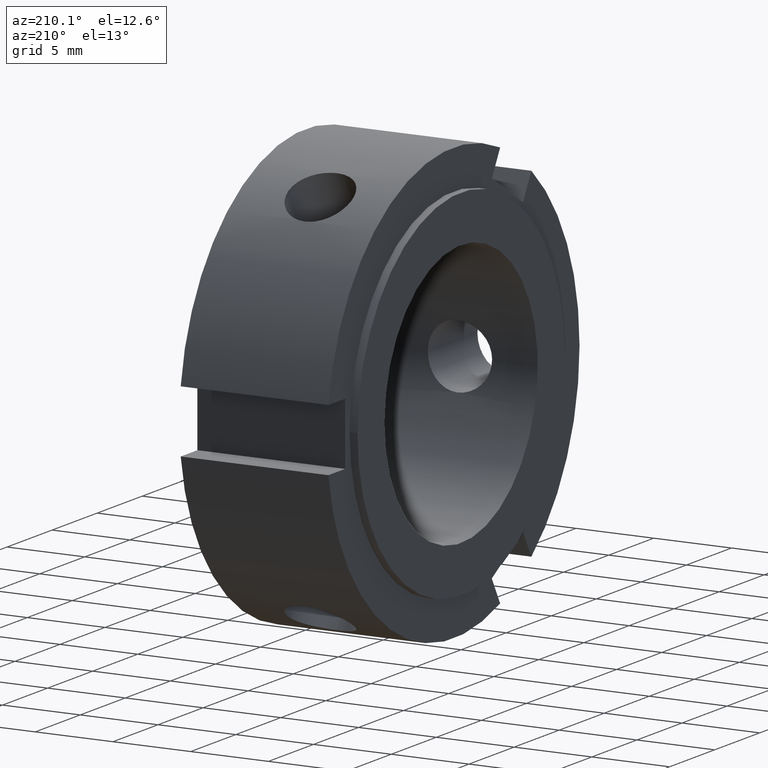
[diagram: clean part render]
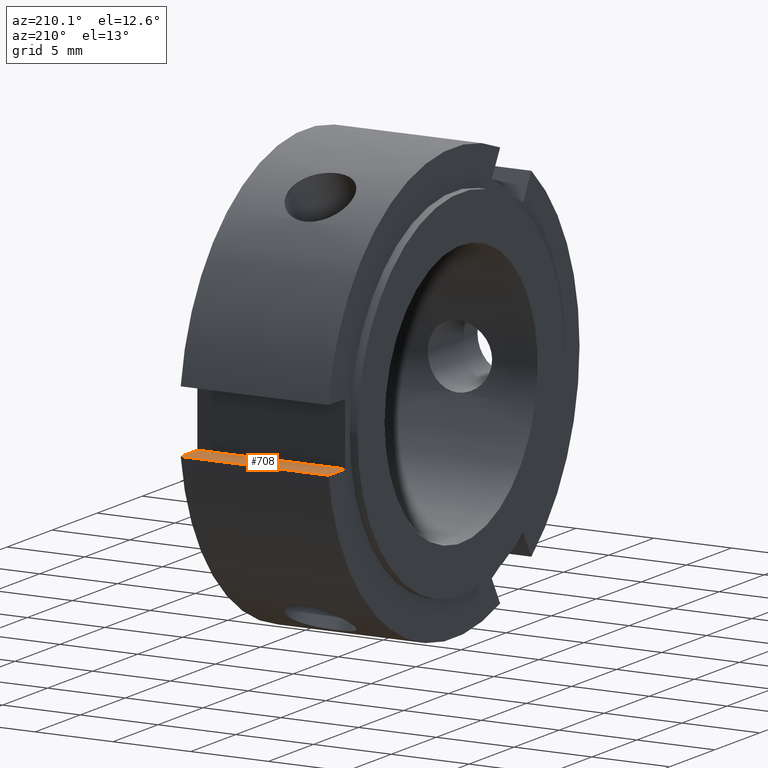
[diagram: same view with one face highlighted and labeled with its STEP entity id]
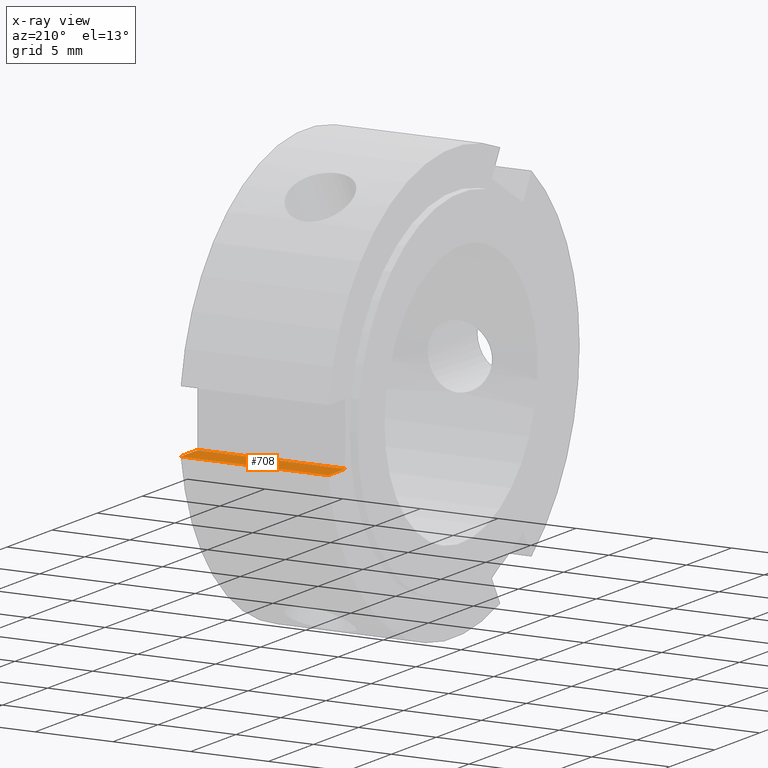
[diagram: x-ray of the same camera — body ghosted, the highlighted face saturated]
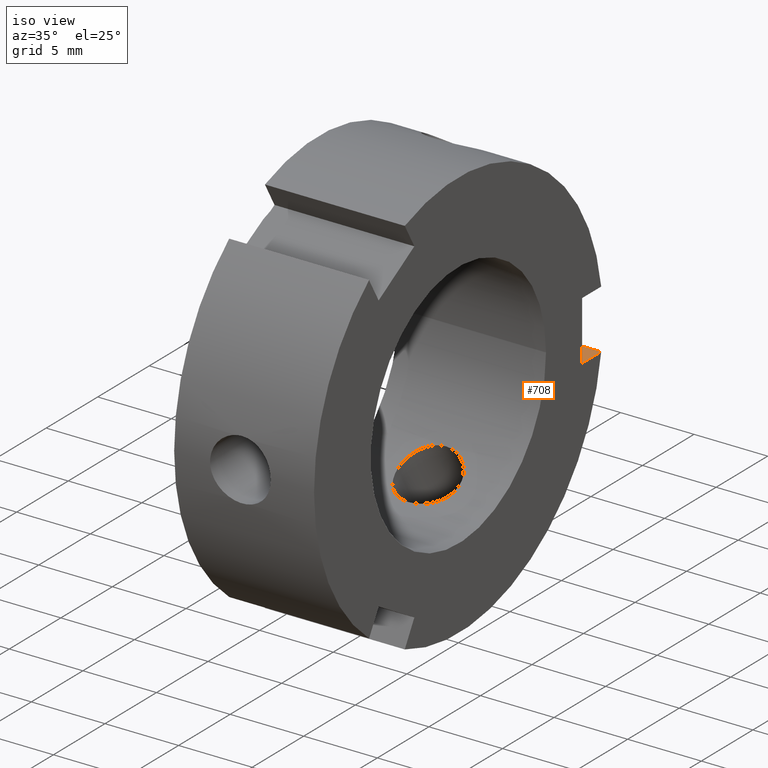
[diagram: same view with one face highlighted and labeled with its STEP entity id]
A machine part, auxiliary view. The second image highlights one B-rep face of the part: STEP entity #708.
The next image is the same camera in x-ray: the body ghosted, the highlighted face saturated — about 0% of this face is hidden behind the body in this view.
A second angle (iso view) of the same face is appended — the face is thin or edge-on in the first view.
In plain terms, the highlighted planar face has unit normal (0, 0, -1).
Its self-contained STEP definition (entity closure, byte-faithful):
#456=CARTESIAN_POINT('',(9.999999999999996,13.856406460551016,-2.000000000000000));
#457=VERTEX_POINT('',#456);
#465=CARTESIAN_POINT('',(9.999999999999996,12.0,-2.000000000000000));
#466=VERTEX_POINT('',#465);
#467=CARTESIAN_POINT('',(9.999999999999996,13.856406460551016,-2.000000000000000));
#468=DIRECTION('',(0.0,-1.0,0.0));
#469=VECTOR('',#468,1.856406460551018);
#470=LINE('',#467,#469);
#471=EDGE_CURVE('',#457,#466,#470,.T.);
#554=CARTESIAN_POINT('',(0.499999999999998,13.856406460551016,-2.000000000000000));
#555=VERTEX_POINT('',#554);
#563=CARTESIAN_POINT('',(0.499999999999998,13.856406460551016,-2.000000000000000));
#564=DIRECTION('',(1.0,0.0,0.0));
#565=VECTOR('',#564,9.499999999999996);
#566=LINE('',#563,#565);
#567=EDGE_CURVE('',#555,#457,#566,.T.);
#685=CARTESIAN_POINT('',(9.999999999999996,12.0,-2.000000000000000));
#686=DIRECTION('',(0.0,0.0,-1.0));
#687=DIRECTION('',(-1.0,0.0,0.0));
#688=AXIS2_PLACEMENT_3D('',#685,#686,#687);
#689=PLANE('',#688);
#690=CARTESIAN_POINT('',(0.499999999999997,12.0,-2.000000000000000));
#691=VERTEX_POINT('',#690);
#692=CARTESIAN_POINT('',(0.499999999999997,12.0,-2.000000000000000));
#693=DIRECTION('',(0.0,1.0,0.0));
#694=VECTOR('',#693,1.856406460551016);
#695=LINE('',#692,#694);
#696=EDGE_CURVE('',#691,#555,#695,.T.);
#697=ORIENTED_EDGE('',*,*,#696,.F.);
#698=CARTESIAN_POINT('',(9.999999999999996,12.0,-2.000000000000000));
#699=DIRECTION('',(-1.0,0.0,0.0));
#700=VECTOR('',#699,9.499999999999998);
#701=LINE('',#698,#700);
#702=EDGE_CURVE('',#466,#691,#701,.T.);
#703=ORIENTED_EDGE('',*,*,#702,.F.);
#704=ORIENTED_EDGE('',*,*,#471,.F.);
#705=ORIENTED_EDGE('',*,*,#567,.F.);
#706=EDGE_LOOP('',(#697,#703,#704,#705));
#707=FACE_OUTER_BOUND('',#706,.T.);
#708=ADVANCED_FACE('',(#707),#689,.F.);